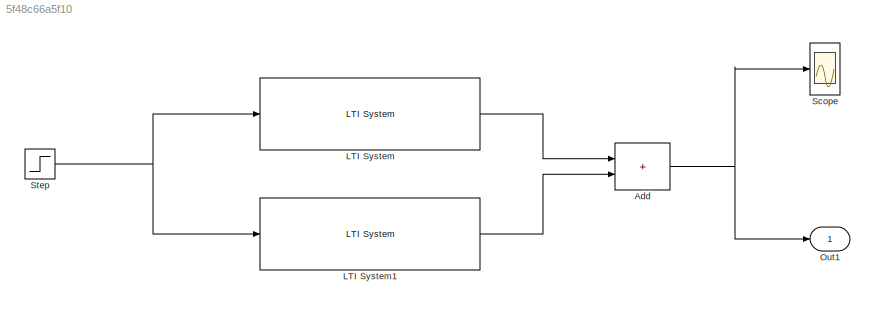
MODEL slx_5f48c66a5f10
KIND model
CONFIG AbsTol = auto
CONFIG EnableMultiTasking = off
CONFIG FixedStep = auto
CONFIG MaxStep = auto
CONFIG MinStep = auto
CONFIG RelTol = 1e-3
CONFIG SampleTimeConstraint = Unconstrained
CONFIG SolverName = VariableStepAuto
CONFIG StartTime = 0.0
CONFIG StopTime = 500
WORKSPACE source: MATLAB code (in-file)
WORKSPACE K = -1.2
WORKSPACE alpha = 0.4
WORKSPACE D1 = 30
WORKSPACE D2 = 45
WORKSPACE tau = 40
BLOCK [Sum] Add
  IconShape = rectangular
  Ports = [2, 1]
BLOCK [Reference] LTI System  REF=cstblocks/LTI System
  Ports = [1, 1]
  SourceBlock = cstblocks/LTI System
  SourceProductBaseCode = CT
  SourceType = LTI Block
BLOCK [Reference] LTI System1  REF=cstblocks/LTI System
  Ports = [1, 1]
  SourceBlock = cstblocks/LTI System
  SourceProductBaseCode = CT
  SourceType = LTI Block
BLOCK [Outport] Out1
BLOCK [Scope] Scope
  Floating = off
  NumInputPorts = 1
  Ports = [1]
  ScopeSpecificationString = Simulink.scopes.TimeScopeBlockCfg('CurrentConfiguration', extmgr.ConfigurationSet(extmgr.Configuration('Core','General UI',true),extmgr.Configuration('Core','Source UI',true),extmgr.Configuration('Sources','WiredSimulink',true),extmgr.Configuration('Visuals','Time Domain',true,'SerializedDisplays',{struct('MinYLimReal','-1.88998','MaxYLimReal','0.21','YLabelReal','','MinYLimMag','0.00000','MaxYLim...<+1372ch>
BLOCK [Step] Step
  SampleTime = 0
NET Add:1 -> Out1:1, Scope:1
LINE LTI System1:1 -> Add:2
LINE LTI System:1 -> Add:1
NET Step:1 -> LTI System1:1, LTI System:1
note: NET lines group one-source signal fan-out (src -> all destinations, sorted); 1:1 wires keep LINE
